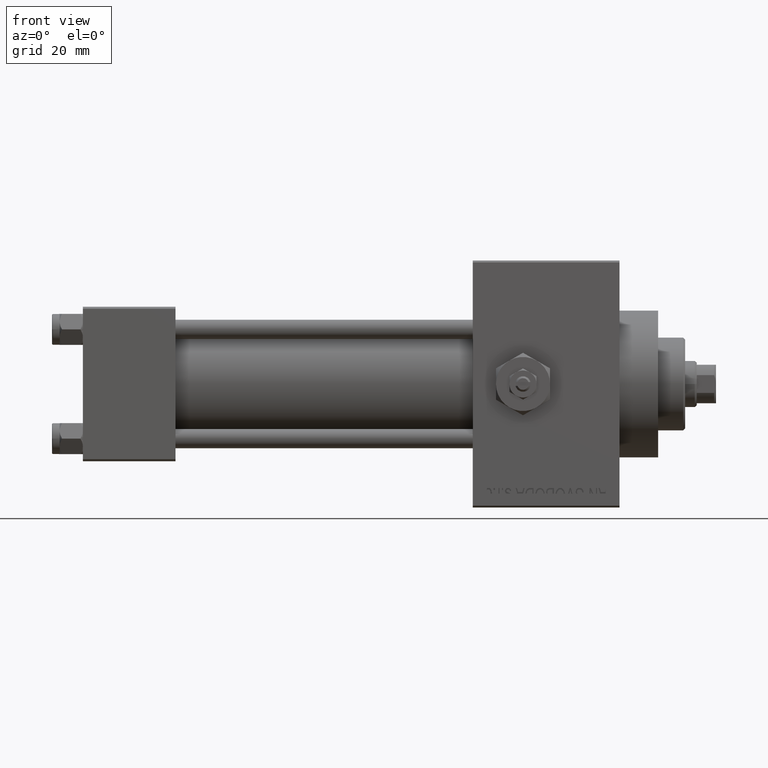
[diagram: clean part render]
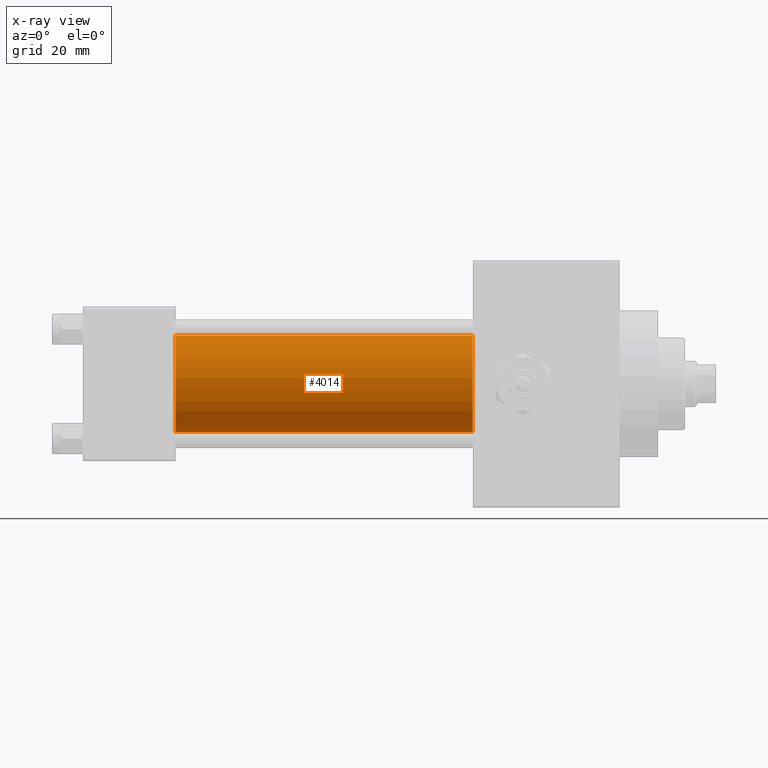
[diagram: x-ray — body ghosted, one internal face saturated and labeled with its STEP entity id]
A machine part, front view, then the same camera in x-ray: the body is ghosted and one INTERNAL B-rep face — a face not visible from any outside direction — is saturated and labeled: STEP entity #4014.
In plain terms, the highlighted cylindrical surface (partial cylindrical patch) has radius 12.5 mm, axis along (-1, -0, -0).
Its self-contained STEP definition (entity closure, byte-faithful):
#962 = DIRECTION ( 'NONE',  ( -1.000000000000000000, -0.000000000000000000, -0.000000000000000000 ) ) ;
#1533 = DIRECTION ( 'NONE',  ( 0.000000000000000000, 0.000000000000000000, 1.000000000000000000 ) ) ;
#3081 = ORIENTED_EDGE ( 'NONE', *, *, #16928, .F. ) ;
#3523 = VERTEX_POINT ( 'NONE', #25717 ) ;
#4014 = ADVANCED_FACE ( 'NONE', ( #31762 ), #35713, .F. ) ;
#4195 = LINE ( 'NONE', #19306, #13146 ) ;
#6291 = DIRECTION ( 'NONE',  ( -1.000000000000000000, -0.000000000000000000, -0.000000000000000000 ) ) ;
#6963 = DIRECTION ( 'NONE',  ( 1.000000000000000000, 0.000000000000000000, 0.000000000000000000 ) ) ;
#10247 = LINE ( 'NONE', #44409, #36638 ) ;
#13146 = VECTOR ( 'NONE', #962, 1000.000000000000000 ) ;
#16670 = CARTESIAN_POINT ( 'NONE',  ( 101.0000000000000000, -2.602085213965210642E-15, 0.000000000000000000 ) ) ;
#16928 = EDGE_CURVE ( 'NONE', #32466, #41875, #4195, .T. ) ;
#18195 = AXIS2_PLACEMENT_3D ( 'NONE', #16670, #24344, #47342 ) ;
#19306 = CARTESIAN_POINT ( 'NONE',  ( 101.0000000000000000, -2.602085213965210642E-15, 12.49999999999999645 ) ) ;
#20616 = DIRECTION ( 'NONE',  ( -1.000000000000000000, -0.000000000000000000, -0.000000000000000000 ) ) ;
#21204 = EDGE_CURVE ( 'NONE', #41875, #3523, #29776, .T. ) ;
#21595 = CARTESIAN_POINT ( 'NONE',  ( 101.0000000000000000, -1.071276715031019515E-15, -12.49999999999999645 ) ) ;
#24344 = DIRECTION ( 'NONE',  ( 1.000000000000000000, 0.000000000000000000, 0.000000000000000000 ) ) ;
#24863 = ORIENTED_EDGE ( 'NONE', *, *, #21204, .F. ) ;
#25313 = AXIS2_PLACEMENT_3D ( 'NONE', #43600, #20616, #1533 ) ;
#25672 = ORIENTED_EDGE ( 'NONE', *, *, #30021, .T. ) ;
#25717 = CARTESIAN_POINT ( 'NONE',  ( 24.00000000000000000, -1.071276715031019515E-15, -12.49999999999999645 ) ) ;
#29776 = CIRCLE ( 'NONE', #48704, 12.49999999999999645 ) ;
#30021 = EDGE_CURVE ( 'NONE', #32466, #47952, #40327, .T. ) ;
#31762 = FACE_OUTER_BOUND ( 'NONE', #41011, .T. ) ;
#32100 = ORIENTED_EDGE ( 'NONE', *, *, #36559, .T. ) ;
#32466 = VERTEX_POINT ( 'NONE', #37824 ) ;
#35713 = CYLINDRICAL_SURFACE ( 'NONE', #25313, 12.49999999999999645 ) ;
#36559 = EDGE_CURVE ( 'NONE', #47952, #3523, #10247, .T. ) ;
#36638 = VECTOR ( 'NONE', #6291, 1000.000000000000000 ) ;
#37824 = CARTESIAN_POINT ( 'NONE',  ( 101.0000000000000000, -2.602085213965210642E-15, 12.49999999999999645 ) ) ;
#40327 = CIRCLE ( 'NONE', #18195, 12.49999999999999645 ) ;
#40633 = DIRECTION ( 'NONE',  ( 0.000000000000000000, 0.000000000000000000, -1.000000000000000000 ) ) ;
#40874 = CARTESIAN_POINT ( 'NONE',  ( 24.00000000000000000, -2.602085213965210642E-15, 0.000000000000000000 ) ) ;
#41011 = EDGE_LOOP ( 'NONE', ( #25672, #32100, #24863, #3081 ) ) ;
#41875 = VERTEX_POINT ( 'NONE', #43483 ) ;
#43483 = CARTESIAN_POINT ( 'NONE',  ( 24.00000000000000000, -2.602085213965210642E-15, 12.49999999999999645 ) ) ;
#43600 = CARTESIAN_POINT ( 'NONE',  ( 101.0000000000000000, -2.602085213965210642E-15, 0.000000000000000000 ) ) ;
#44409 = CARTESIAN_POINT ( 'NONE',  ( 101.0000000000000000, -1.071276715031019515E-15, -12.49999999999999645 ) ) ;
#47342 = DIRECTION ( 'NONE',  ( 0.000000000000000000, 0.000000000000000000, -1.000000000000000000 ) ) ;
#47952 = VERTEX_POINT ( 'NONE', #21595 ) ;
#48704 = AXIS2_PLACEMENT_3D ( 'NONE', #40874, #6963, #40633 ) ;